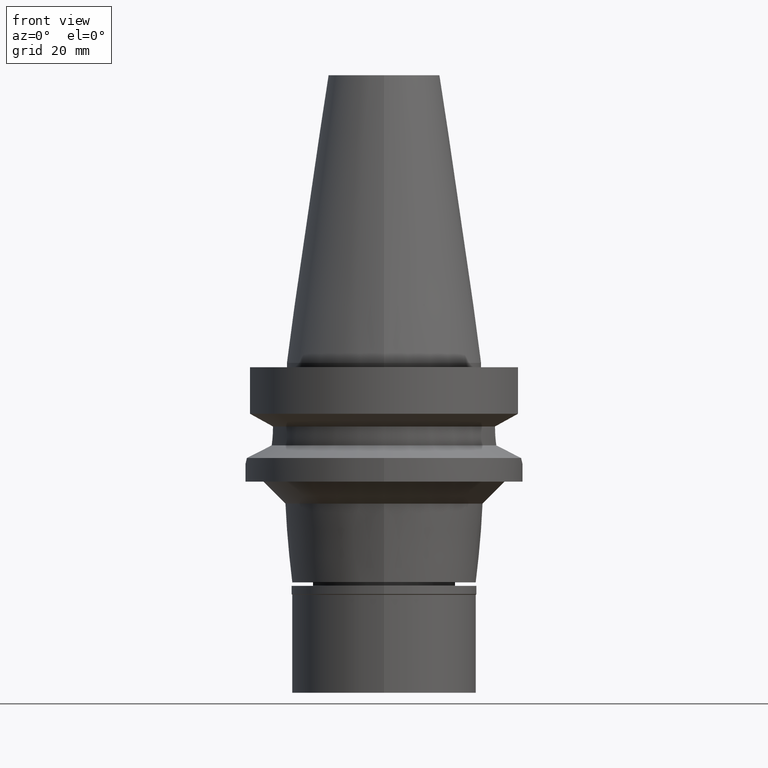
[diagram: clean part render]
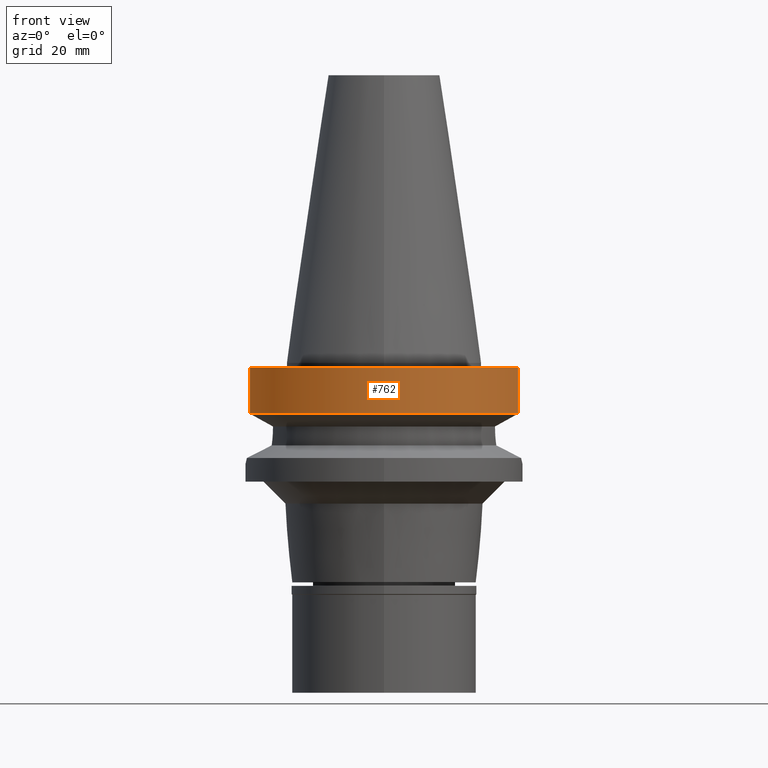
[diagram: same view with one face highlighted and labeled with its STEP entity id]
A machine part, front view. The second image highlights one B-rep face of the part: STEP entity #762.
In plain terms, the highlighted cylindrical surface (partial cylindrical patch) has radius 31.5 mm, axis along (0, 0, -1).
Its self-contained STEP definition (entity closure, byte-faithful):
#29 = EDGE_CURVE ( 'NONE', #1624, #1511, #1601, .T. ) ;
#204 = LINE ( 'NONE', #1595, #979 ) ;
#233 = EDGE_CURVE ( 'NONE', #1635, #1511, #727, .T. ) ;
#235 = AXIS2_PLACEMENT_3D ( 'NONE', #2466, #1769, #1042 ) ;
#408 = EDGE_CURVE ( 'NONE', #1635, #1415, #204, .T. ) ;
#429 = VECTOR ( 'NONE', #672, 1000.000000000000227 ) ;
#582 = FACE_OUTER_BOUND ( 'NONE', #2807, .T. ) ;
#672 = DIRECTION ( 'NONE',  ( 1.823219179165990085E-08, -6.897459334401961235E-08, 0.9999999999999973355 ) ) ;
#727 = CIRCLE ( 'NONE', #235, 31.50000000000000000 ) ;
#762 = ADVANCED_FACE ( 'NONE', ( #582 ), #2977, .T. ) ;
#851 = DIRECTION ( 'NONE',  ( -1.040311487891018174E-07, -3.935605765414065821E-07, -0.9999999999999171774 ) ) ;
#979 = VECTOR ( 'NONE', #851, 1000.000000000000114 ) ;
#1003 = CARTESIAN_POINT ( 'NONE',  ( -30.45402291541999773, -8.049999271247999744, -11.56551221638000015 ) ) ;
#1042 = DIRECTION ( 'NONE',  ( 0.0000000000000000000, -1.000000000000000000, 0.0000000000000000000 ) ) ;
#1046 = CIRCLE ( 'NONE', #2784, 31.50000000000000000 ) ;
#1065 = ORIENTED_EDGE ( 'NONE', *, *, #29, .F. ) ;
#1117 = CARTESIAN_POINT ( 'NONE',  ( 30.45402272279000044, -8.049999999999000622, -11.56550565266999975 ) ) ;
#1221 = CARTESIAN_POINT ( 'NONE',  ( -30.45402272279000044, -8.050000000000000711, -1.000000000000000000 ) ) ;
#1303 = ORIENTED_EDGE ( 'NONE', *, *, #233, .T. ) ;
#1376 = AXIS2_PLACEMENT_3D ( 'NONE', #2682, #1546, #1786 ) ;
#1415 = VERTEX_POINT ( 'NONE', #1117 ) ;
#1511 = VERTEX_POINT ( 'NONE', #1221 ) ;
#1546 = DIRECTION ( 'NONE',  ( 0.0000000000000000000, 0.0000000000000000000, -1.000000000000000000 ) ) ;
#1595 = CARTESIAN_POINT ( 'NONE',  ( 30.45402272279000044, -8.050000000000000711, -1.000000000000000000 ) ) ;
#1601 = LINE ( 'NONE', #1659, #429 ) ;
#1624 = VERTEX_POINT ( 'NONE', #1003 ) ;
#1635 = VERTEX_POINT ( 'NONE', #1940 ) ;
#1659 = CARTESIAN_POINT ( 'NONE',  ( -30.45402291541999773, -8.049999271247999744, -11.56551221638000015 ) ) ;
#1769 = DIRECTION ( 'NONE',  ( 0.0000000000000000000, 0.0000000000000000000, -1.000000000000000000 ) ) ;
#1786 = DIRECTION ( 'NONE',  ( 0.0000000000000000000, -1.000000000000000000, 0.0000000000000000000 ) ) ;
#1940 = CARTESIAN_POINT ( 'NONE',  ( 30.45402272279000044, -8.050000000000000711, -1.000000000000000000 ) ) ;
#2289 = CARTESIAN_POINT ( 'NONE',  ( 0.0000000000000000000, 1.065333950388000029E-14, -11.56550565266999975 ) ) ;
#2466 = CARTESIAN_POINT ( 'NONE',  ( 0.0000000000000000000, 2.106943585592999780E-14, -1.000000000000000000 ) ) ;
#2682 = CARTESIAN_POINT ( 'NONE',  ( 0.0000000000000000000, 2.106943585592999780E-14, 72.04500000000000171 ) ) ;
#2689 = ORIENTED_EDGE ( 'NONE', *, *, #2919, .T. ) ;
#2721 = DIRECTION ( 'NONE',  ( 0.0000000000000000000, 0.0000000000000000000, 1.000000000000000000 ) ) ;
#2723 = ORIENTED_EDGE ( 'NONE', *, *, #408, .F. ) ;
#2784 = AXIS2_PLACEMENT_3D ( 'NONE', #2289, #2721, #2972 ) ;
#2807 = EDGE_LOOP ( 'NONE', ( #1065, #2689, #2723, #1303 ) ) ;
#2919 = EDGE_CURVE ( 'NONE', #1624, #1415, #1046, .T. ) ;
#2972 = DIRECTION ( 'NONE',  ( 0.0000000000000000000, -1.000000000000000000, 0.0000000000000000000 ) ) ;
#2977 = CYLINDRICAL_SURFACE ( 'NONE', #1376, 31.50000000000000000 ) ;